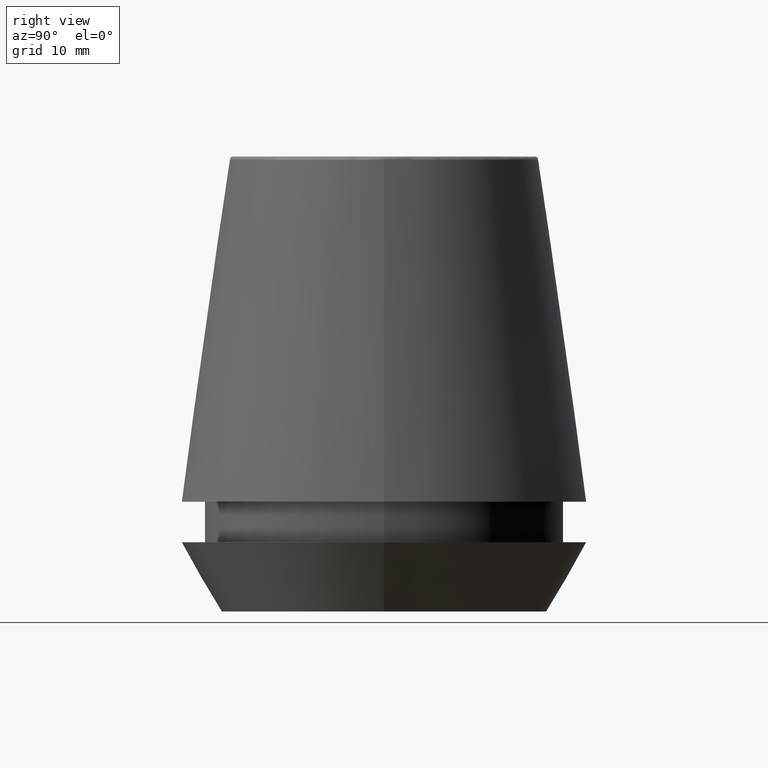
[diagram: clean part render]
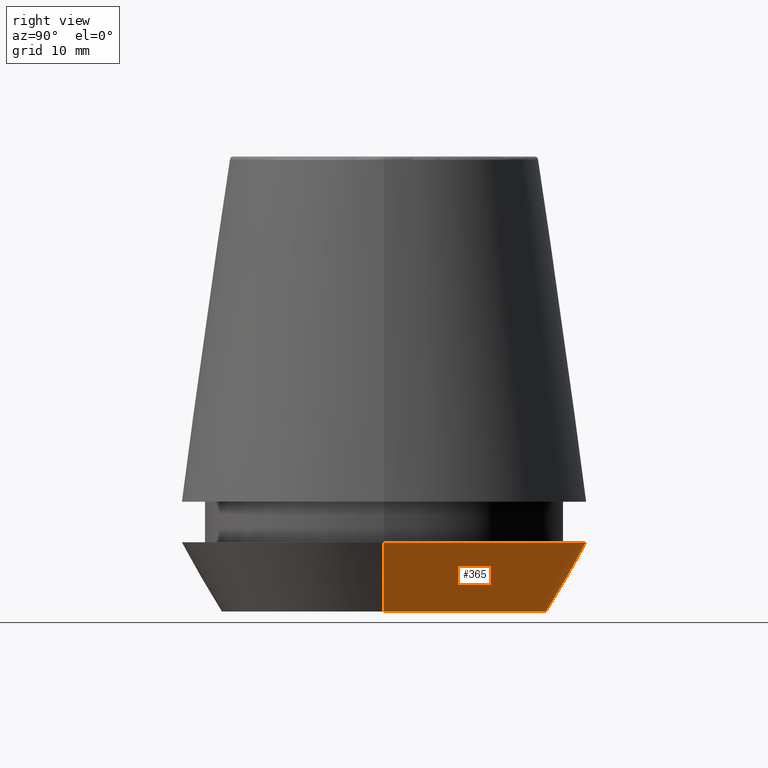
[diagram: same view with one face highlighted and labeled with its STEP entity id]
A machine part, right view. The second image highlights one B-rep face of the part: STEP entity #365.
In plain terms, the highlighted conical surface has half-angle 30 deg.
Its self-contained STEP definition (entity closure, byte-faithful):
#3 = EDGE_CURVE ( 'NONE', #191, #173, #342, .T. ) ;
#9 = CARTESIAN_POINT ( 'NONE',  ( 16.45854811567268100, 0.0000000000000000000, 0.0000000000000000000 ) ) ;
#22 = CIRCLE ( 'NONE', #67, 16.45854811567268100 ) ;
#25 = AXIS2_PLACEMENT_3D ( 'NONE', #56, #243, #318 ) ;
#28 = EDGE_CURVE ( 'NONE', #114, #29, #22, .T. ) ;
#29 = VERTEX_POINT ( 'NONE', #348 ) ;
#42 = CARTESIAN_POINT ( 'NONE',  ( -20.50000000000000000, 2.510525938252074100E-015, 7.000000000000006200 ) ) ;
#56 = CARTESIAN_POINT ( 'NONE',  ( 0.0000000000000000000, 0.0000000000000000000, 7.000000000000006200 ) ) ;
#67 = AXIS2_PLACEMENT_3D ( 'NONE', #197, #159, #82 ) ;
#71 = CARTESIAN_POINT ( 'NONE',  ( 16.45854811567268100, 0.0000000000000000000, 0.0000000000000000000 ) ) ;
#76 = DIRECTION ( 'NONE',  ( -0.4999999999999941700, 6.123233995736694500E-017, 0.8660254037844420400 ) ) ;
#77 = DIRECTION ( 'NONE',  ( 0.4999999999999941700, 0.0000000000000000000, 0.8660254037844420400 ) ) ;
#82 = DIRECTION ( 'NONE',  ( 1.000000000000000000, 0.0000000000000000000, 0.0000000000000000000 ) ) ;
#93 = ORIENTED_EDGE ( 'NONE', *, *, #265, .F. ) ;
#105 = DIRECTION ( 'NONE',  ( -0.0000000000000000000, -0.0000000000000000000, 1.000000000000000000 ) ) ;
#114 = VERTEX_POINT ( 'NONE', #71 ) ;
#159 = DIRECTION ( 'NONE',  ( -0.0000000000000000000, -0.0000000000000000000, 1.000000000000000000 ) ) ;
#171 = CARTESIAN_POINT ( 'NONE',  ( -16.45854811567268100, 2.015590826847124800E-015, 0.0000000000000000000 ) ) ;
#173 = VERTEX_POINT ( 'NONE', #42 ) ;
#177 = ORIENTED_EDGE ( 'NONE', *, *, #28, .T. ) ;
#179 = ORIENTED_EDGE ( 'NONE', *, *, #3, .F. ) ;
#187 = CONICAL_SURFACE ( 'NONE', #370, 16.45854811567268100, 0.5235987755982921500 ) ;
#191 = VERTEX_POINT ( 'NONE', #255 ) ;
#193 = EDGE_CURVE ( 'NONE', #29, #173, #273, .T. ) ;
#196 = FACE_OUTER_BOUND ( 'NONE', #353, .T. ) ;
#197 = CARTESIAN_POINT ( 'NONE',  ( 0.0000000000000000000, 0.0000000000000000000, 0.0000000000000000000 ) ) ;
#235 = CARTESIAN_POINT ( 'NONE',  ( 0.0000000000000000000, 0.0000000000000000000, 0.0000000000000000000 ) ) ;
#243 = DIRECTION ( 'NONE',  ( -0.0000000000000000000, -0.0000000000000000000, 1.000000000000000000 ) ) ;
#251 = VECTOR ( 'NONE', #77, 1000.000000000000000 ) ;
#255 = CARTESIAN_POINT ( 'NONE',  ( 20.50000000000000000, 0.0000000000000000000, 7.000000000000006200 ) ) ;
#265 = EDGE_CURVE ( 'NONE', #114, #191, #279, .T. ) ;
#270 = VECTOR ( 'NONE', #76, 1000.000000000000000 ) ;
#273 = LINE ( 'NONE', #171, #270 ) ;
#279 = LINE ( 'NONE', #9, #251 ) ;
#318 = DIRECTION ( 'NONE',  ( 1.000000000000000000, 0.0000000000000000000, 0.0000000000000000000 ) ) ;
#329 = ORIENTED_EDGE ( 'NONE', *, *, #193, .T. ) ;
#330 = DIRECTION ( 'NONE',  ( 1.000000000000000000, 0.0000000000000000000, 0.0000000000000000000 ) ) ;
#342 = CIRCLE ( 'NONE', #25, 20.50000000000000000 ) ;
#348 = CARTESIAN_POINT ( 'NONE',  ( -16.45854811567268100, 2.263058382549599700E-015, 0.0000000000000000000 ) ) ;
#353 = EDGE_LOOP ( 'NONE', ( #177, #329, #179, #93 ) ) ;
#365 = ADVANCED_FACE ( 'NONE', ( #196 ), #187, .T. ) ;
#370 = AXIS2_PLACEMENT_3D ( 'NONE', #235, #105, #330 ) ;